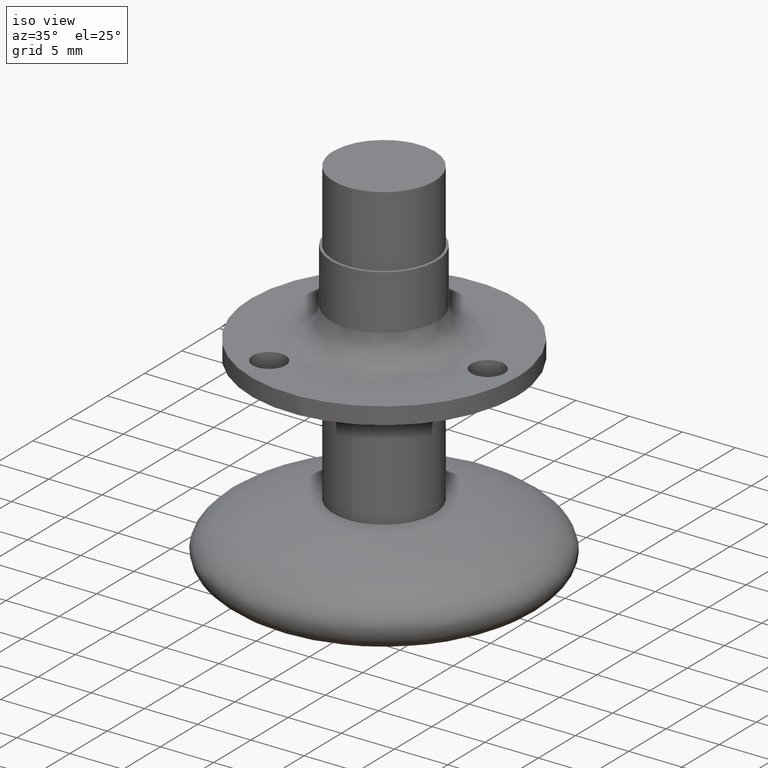
[diagram: clean part render]
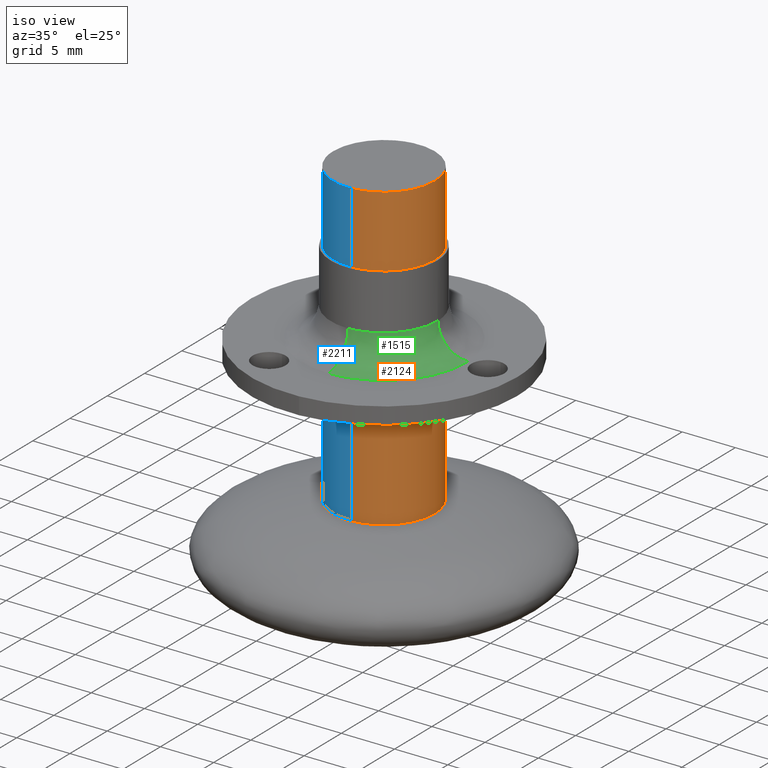
[diagram: same view with three faces highlighted in distinct colors, each labeled with its STEP entity id]
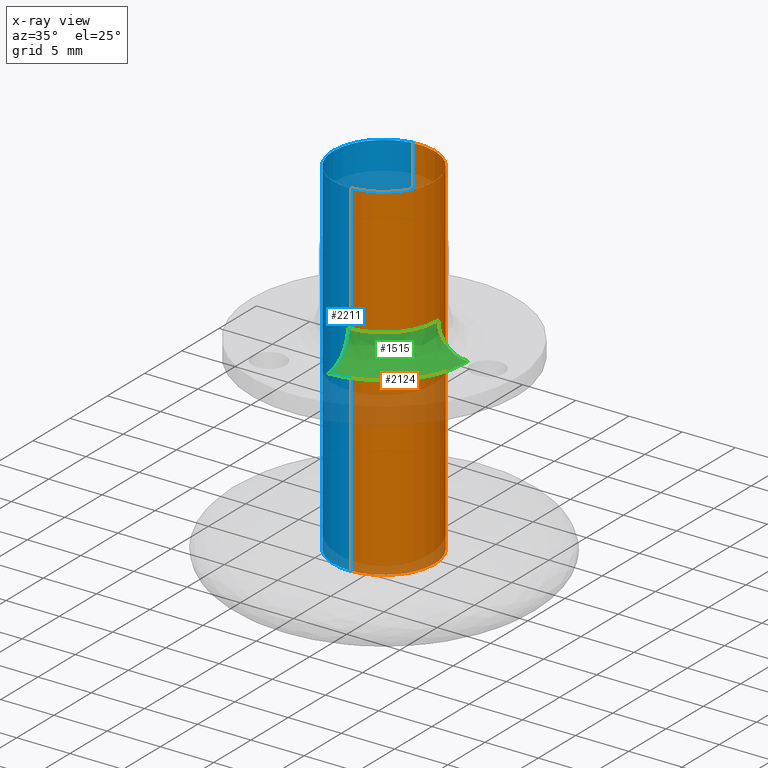
[diagram: x-ray of the same camera — body ghosted, the three highlighted faces saturated]
A machine part, iso view with three faces highlighted in distinct colors.
The next image is the same camera in x-ray (body ghosted, the three faces saturated) — at least one of them is partly hidden behind the body in this view.
Their STEP definitions:

[orange] entity #2124 — the highlighted face is a freeform B-spline surface patch.
#2022=CARTESIAN_POINT('',(-0.562138042552812,4.729207869306960,0.812500000000001));
#2023=CARTESIAN_POINT('',(-0.426790145138369,4.745296018573984,0.812500000000001));
#2024=CARTESIAN_POINT('',(-0.290743669534756,4.753616977484140,0.812500000000001));
#2025=CARTESIAN_POINT('',(4.462873307949383,5.044360647018896,0.812500000000001));
#2026=CARTESIAN_POINT('',(4.753616977484140,0.290743669534756,0.812500000000001));
#2027=CARTESIAN_POINT('',(5.044360647018896,-4.462873307949383,0.812500000000001));
#2028=CARTESIAN_POINT('',(0.290743669534756,-4.753616977484140,0.812500000000001));
#2029=CARTESIAN_POINT('',(-0.562138042552812,4.729207869306960,-33.332812500000017));
#2030=CARTESIAN_POINT('',(-0.426790145138369,4.745296018573984,-33.332812500000003));
#2031=CARTESIAN_POINT('',(-0.290743669534756,4.753616977484140,-33.332812500000003));
#2032=CARTESIAN_POINT('',(4.462873307949383,5.044360647018896,-33.332812500000003));
#2033=CARTESIAN_POINT('',(4.753616977484140,0.290743669534756,-33.332812500000003));
#2034=CARTESIAN_POINT('',(5.044360647018896,-4.462873307949383,-33.332812500000003));
#2035=CARTESIAN_POINT('',(0.290743669534756,-4.753616977484140,-33.332812500000003));
#2043=(BOUNDED_SURFACE()B_SPLINE_SURFACE(2,1,((#2022,#2029),(#2023,#2030),(#2024,#2031),(#2025,#2032),(#2026,#2033),(#2027,#2034),(#2028,#2035)),.UNSPECIFIED.,.F.,.F.,.U.)B_SPLINE_SURFACE_WITH_KNOTS((3,2,2,3),(2,2),(0.0,0.315630734528299,8.206399097735758,16.097167460943218),(0.0,34.145312500000010),.UNSPECIFIED.)GEOMETRIC_REPRESENTATION_ITEM()RATIONAL_B_SPLINE_SURFACE(((0.977505800795127,0.977505800795127),(0.988284271247462,0.988284271247462),(1.0,1.0),(0.707106781186548,0.707106781186548),(1.0,1.0),(0.707106781186548,0.707106781186548),(1.0,1.0)))REPRESENTATION_ITEM('')SURFACE());
#2044=CARTESIAN_POINT('',(-0.562129854687720,4.729208842544466,-32.500000000000007));
#2045=VERTEX_POINT('',#2044);
#2046=CARTESIAN_POINT('',(4.762500000000000,0.0,-32.500000000000000));
#2047=VERTEX_POINT('',#2046);
#2048=CARTESIAN_POINT('',(-0.562129854687720,4.729208842544466,-32.500000000000014));
#2049=CARTESIAN_POINT('',(-0.282050732630207,4.762500000000000,-32.499999999999993));
#2050=CARTESIAN_POINT('',(0.0,4.762500000000000,-32.500000000000000));
#2051=CARTESIAN_POINT('',(4.762500000000000,4.762500000000000,-32.500000000000007));
#2052=CARTESIAN_POINT('',(4.762500000000000,0.0,-32.500000000000000));
#2060=(BOUNDED_CURVE()B_SPLINE_CURVE(2,(#2048,#2049,#2050,#2051,#2052),.UNSPECIFIED.,.F.,.U.)B_SPLINE_CURVE_WITH_KNOTS((3,2,3),(0.229562766117700,0.250000000000000,0.500000000000000),.UNSPECIFIED.)CURVE()GEOMETRIC_REPRESENTATION_ITEM()RATIONAL_B_SPLINE_CURVE((0.956027327700691,0.976056291138279,1.0,0.707106781186548,1.0))REPRESENTATION_ITEM(''));
#2061=EDGE_CURVE('',#2045,#2047,#2060,.T.);
#2062=ORIENTED_EDGE('',*,*,#2061,.F.);
#2063=CARTESIAN_POINT('',(-0.562129955801661,4.729208830525895,-7.950399E-016));
#2064=VERTEX_POINT('',#2063);
#2065=CARTESIAN_POINT('',(-0.562129955801661,4.729208830525895,-7.950399E-016));
#2066=CARTESIAN_POINT('',(-0.562129854687720,4.729208842544466,-32.500000000000007));
#2067=QUASI_UNIFORM_CURVE('',1,(#2065,#2066),.UNSPECIFIED.,.F.,.U.);
#2068=EDGE_CURVE('',#2064,#2045,#2067,.T.);
#2069=ORIENTED_EDGE('',*,*,#2068,.F.);
#2070=CARTESIAN_POINT('',(4.762500000000000,0.0,0.0));
#2071=VERTEX_POINT('',#2070);
#2072=CARTESIAN_POINT('',(-0.562129955801661,4.729208830525895,-7.950399E-016));
#2073=CARTESIAN_POINT('',(-0.282050783721633,4.762500000000000,0.0));
#2074=CARTESIAN_POINT('',(0.0,4.762500000000000,0.0));
#2075=CARTESIAN_POINT('',(4.762500000000000,4.762500000000000,0.0));
#2076=CARTESIAN_POINT('',(4.762500000000000,0.0,0.0));
#2084=(BOUNDED_CURVE()B_SPLINE_CURVE(2,(#2072,#2073,#2074,#2075,#2076),.UNSPECIFIED.,.F.,.U.)B_SPLINE_CURVE_WITH_KNOTS((3,2,3),(0.229562762504285,0.250000000000000,0.500000000000000),.UNSPECIFIED.)CURVE()GEOMETRIC_REPRESENTATION_ITEM()RATIONAL_B_SPLINE_CURVE((0.956027320618231,0.976056286904901,1.0,0.707106781186548,1.0))REPRESENTATION_ITEM(''));
#2085=EDGE_CURVE('',#2064,#2071,#2084,.T.);
#2086=ORIENTED_EDGE('',*,*,#2085,.T.);
#2087=CARTESIAN_POINT('',(0.290738367728659,-4.753617301750558,-7.771561E-016));
#2088=VERTEX_POINT('',#2087);
#2089=CARTESIAN_POINT('',(4.762500000000000,0.0,0.0));
#2090=CARTESIAN_POINT('',(4.762500000000000,-4.480117649739167,0.0));
#2091=CARTESIAN_POINT('',(0.290738367728658,-4.753617301750558,-7.771561E-016));
#2099=(BOUNDED_CURVE()B_SPLINE_CURVE(2,(#2089,#2090,#2091),.UNSPECIFIED.,.F.,.U.)B_SPLINE_CURVE_WITH_KNOTS((3,3),(0.500000000000000,0.739333154686954),.UNSPECIFIED.)CURVE()GEOMETRIC_REPRESENTATION_ITEM()RATIONAL_B_SPLINE_CURVE((1.0,0.719603767819840,0.976072454119788))REPRESENTATION_ITEM(''));
#2100=EDGE_CURVE('',#2071,#2088,#2099,.T.);
#2101=ORIENTED_EDGE('',*,*,#2100,.T.);
#2102=CARTESIAN_POINT('',(0.290738301588959,-4.753617305795686,-32.499999999999993));
#2103=VERTEX_POINT('',#2102);
#2104=CARTESIAN_POINT('',(0.290738367728659,-4.753617301750558,-7.771561E-016));
#2105=CARTESIAN_POINT('',(0.290738301588959,-4.753617305795686,-32.499999999999993));
#2106=QUASI_UNIFORM_CURVE('',1,(#2104,#2105),.UNSPECIFIED.,.F.,.U.);
#2107=EDGE_CURVE('',#2088,#2103,#2106,.T.);
#2108=ORIENTED_EDGE('',*,*,#2107,.T.);
#2109=CARTESIAN_POINT('',(4.762500000000000,0.0,-32.500000000000000));
#2110=CARTESIAN_POINT('',(4.762500000000000,-4.480117712189990,-32.499999999999993));
#2111=CARTESIAN_POINT('',(0.290738301588959,-4.753617305795686,-32.500000000000000));
#2119=(BOUNDED_CURVE()B_SPLINE_CURVE(2,(#2109,#2110,#2111),.UNSPECIFIED.,.F.,.U.)B_SPLINE_CURVE_WITH_KNOTS((3,3),(0.500000000000000,0.739333157087694),.UNSPECIFIED.)CURVE()GEOMETRIC_REPRESENTATION_ITEM()RATIONAL_B_SPLINE_CURVE((1.0,0.719603765007199,0.976072459265038))REPRESENTATION_ITEM(''));
#2120=EDGE_CURVE('',#2047,#2103,#2119,.T.);
#2121=ORIENTED_EDGE('',*,*,#2120,.F.);
#2122=EDGE_LOOP('',(#2062,#2069,#2086,#2101,#2108,#2121));
#2123=FACE_OUTER_BOUND('',#2122,.T.);
#2124=ADVANCED_FACE('',(#2123),#2043,.T.);

[blue] entity #2211 — the highlighted face is a freeform B-spline surface patch.
#2044=CARTESIAN_POINT('',(-0.562129854687720,4.729208842544466,-32.500000000000007));
#2045=VERTEX_POINT('',#2044);
#2063=CARTESIAN_POINT('',(-0.562129955801661,4.729208830525895,-7.950399E-016));
#2064=VERTEX_POINT('',#2063);
#2065=CARTESIAN_POINT('',(-0.562129955801661,4.729208830525895,-7.950399E-016));
#2066=CARTESIAN_POINT('',(-0.562129854687720,4.729208842544466,-32.500000000000007));
#2067=QUASI_UNIFORM_CURVE('',1,(#2065,#2066),.UNSPECIFIED.,.F.,.U.);
#2068=EDGE_CURVE('',#2064,#2045,#2067,.T.);
#2087=CARTESIAN_POINT('',(0.290738367728659,-4.753617301750558,-7.771561E-016));
#2088=VERTEX_POINT('',#2087);
#2102=CARTESIAN_POINT('',(0.290738301588959,-4.753617305795686,-32.499999999999993));
#2103=VERTEX_POINT('',#2102);
#2104=CARTESIAN_POINT('',(0.290738367728659,-4.753617301750558,-7.771561E-016));
#2105=CARTESIAN_POINT('',(0.290738301588959,-4.753617305795686,-32.499999999999993));
#2106=QUASI_UNIFORM_CURVE('',1,(#2104,#2105),.UNSPECIFIED.,.F.,.U.);
#2107=EDGE_CURVE('',#2088,#2103,#2106,.T.);
#2125=CARTESIAN_POINT('',(0.356244161106296,-4.749610795798480,0.812500000000001));
#2126=CARTESIAN_POINT('',(0.323587643545533,-4.751608153977484,0.812500000000000));
#2127=CARTESIAN_POINT('',(-4.462873307949383,-5.044360647018896,0.812500000000001));
#2128=CARTESIAN_POINT('',(-4.753616977484140,-0.290743669534756,0.812500000000001));
#2129=CARTESIAN_POINT('',(-5.028181761938662,4.198350875123123,0.812500000000001));
#2130=CARTESIAN_POINT('',(-0.528698414077936,4.733182676042895,0.812500000000001));
#2131=CARTESIAN_POINT('',(-0.495438510386856,4.737136119763934,0.812500000000001));
#2132=CARTESIAN_POINT('',(0.356244161106296,-4.749610795798480,-33.332812500000010));
#2133=CARTESIAN_POINT('',(0.323587643545533,-4.751608153977484,-33.332812499999989));
#2134=CARTESIAN_POINT('',(-4.462873307949383,-5.044360647018896,-33.332812500000003));
#2135=CARTESIAN_POINT('',(-4.753616977484140,-0.290743669534756,-33.332812500000003));
#2136=CARTESIAN_POINT('',(-5.028181761938662,4.198350875123123,-33.332812500000003));
#2137=CARTESIAN_POINT('',(-0.528698414077936,4.733182676042895,-33.332812500000010));
#2138=CARTESIAN_POINT('',(-0.495438510386856,4.737136119763934,-33.332812500000003));
#2146=(BOUNDED_SURFACE()B_SPLINE_SURFACE(2,1,((#2125,#2132),(#2126,#2133),(#2127,#2134),(#2128,#2135),(#2129,#2136),(#2130,#2137),(#2131,#2138)),.UNSPECIFIED.,.F.,.F.,.U.)B_SPLINE_SURFACE_WITH_KNOTS((3,1,2,1,3),(2,2),(0.0,0.077323321272630,7.968091684480089,15.543229313159250,15.620568300399160),(0.0,34.145312500000010),.UNSPECIFIED.)GEOMETRIC_REPRESENTATION_ITEM()RATIONAL_B_SPLINE_SURFACE(((1.005740246174881,1.005740246174881),(1.002870123087441,1.002870123087441),(0.707106781186548,0.707106781186548),(1.0,1.0),(0.718822509939086,0.718822509939086),(0.980146849012515,0.980146849012515),(0.982787897229903,0.982787897229903)))REPRESENTATION_ITEM('')SURFACE());
#2147=CARTESIAN_POINT('',(-4.762500000000000,0.0,-32.500000000000000));
#2148=VERTEX_POINT('',#2147);
#2149=CARTESIAN_POINT('',(-4.762500000000000,0.0,-32.500000000000000));
#2150=CARTESIAN_POINT('',(-4.762500000000000,4.229938554849865,-32.499999999999993));
#2151=CARTESIAN_POINT('',(-0.562129854687720,4.729208842544466,-32.500000000000014));
#2159=(BOUNDED_CURVE()B_SPLINE_CURVE(2,(#2149,#2150,#2151),.UNSPECIFIED.,.F.,.U.)B_SPLINE_CURVE_WITH_KNOTS((3,3),(0.0,0.229562766117700),.UNSPECIFIED.)CURVE()GEOMETRIC_REPRESENTATION_ITEM()RATIONAL_B_SPLINE_CURVE((1.0,0.731050490048269,0.956027327700691))REPRESENTATION_ITEM(''));
#2160=EDGE_CURVE('',#2148,#2045,#2159,.T.);
#2161=ORIENTED_EDGE('',*,*,#2160,.F.);
#2162=CARTESIAN_POINT('',(0.290738301588959,-4.753617305795686,-32.500000000000000));
#2163=CARTESIAN_POINT('',(0.145504843711265,-4.762500000000001,-32.500000000000000));
#2164=CARTESIAN_POINT('',(0.0,-4.762500000000000,-32.500000000000000));
#2165=CARTESIAN_POINT('',(-4.762500000000000,-4.762500000000000,-32.500000000000007));
#2166=CARTESIAN_POINT('',(-4.762500000000000,0.0,-32.500000000000000));
#2174=(BOUNDED_CURVE()B_SPLINE_CURVE(2,(#2162,#2163,#2164,#2165,#2166),.UNSPECIFIED.,.F.,.U.)B_SPLINE_CURVE_WITH_KNOTS((3,2,3),(0.739333157087694,0.750000000000000,1.0),.UNSPECIFIED.)CURVE()GEOMETRIC_REPRESENTATION_ITEM()RATIONAL_B_SPLINE_CURVE((0.976072459265038,0.987503016179349,1.0,0.707106781186548,1.0))REPRESENTATION_ITEM(''));
#2175=EDGE_CURVE('',#2103,#2148,#2174,.T.);
#2176=ORIENTED_EDGE('',*,*,#2175,.F.);
#2177=ORIENTED_EDGE('',*,*,#2107,.F.);
#2178=CARTESIAN_POINT('',(-4.762500000000000,0.0,0.0));
#2179=VERTEX_POINT('',#2178);
#2180=CARTESIAN_POINT('',(0.290738367728658,-4.753617301750558,-7.771561E-016));
#2181=CARTESIAN_POINT('',(0.145504876873833,-4.762500000000001,0.0));
#2182=CARTESIAN_POINT('',(0.0,-4.762500000000000,0.0));
#2183=CARTESIAN_POINT('',(-4.762500000000000,-4.762500000000000,0.0));
#2184=CARTESIAN_POINT('',(-4.762500000000000,0.0,0.0));
#2192=(BOUNDED_CURVE()B_SPLINE_CURVE(2,(#2180,#2181,#2182,#2183,#2184),.UNSPECIFIED.,.F.,.U.)B_SPLINE_CURVE_WITH_KNOTS((3,2,3),(0.739333154686954,0.750000000000000,1.0),.UNSPECIFIED.)CURVE()GEOMETRIC_REPRESENTATION_ITEM()RATIONAL_B_SPLINE_CURVE((0.976072454119788,0.987503013366708,1.0,0.707106781186548,1.0))REPRESENTATION_ITEM(''));
#2193=EDGE_CURVE('',#2088,#2179,#2192,.T.);
#2194=ORIENTED_EDGE('',*,*,#2193,.T.);
#2195=CARTESIAN_POINT('',(-4.762500000000000,0.0,0.0));
#2196=CARTESIAN_POINT('',(-4.762500000000000,4.229938463774061,0.0));
#2197=CARTESIAN_POINT('',(-0.562129955801661,4.729208830525895,-7.950399E-016));
#2205=(BOUNDED_CURVE()B_SPLINE_CURVE(2,(#2195,#2196,#2197),.UNSPECIFIED.,.F.,.U.)B_SPLINE_CURVE_WITH_KNOTS((3,3),(0.0,0.229562762504285),.UNSPECIFIED.)CURVE()GEOMETRIC_REPRESENTATION_ITEM()RATIONAL_B_SPLINE_CURVE((1.0,0.731050494281647,0.956027320618231))REPRESENTATION_ITEM(''));
#2206=EDGE_CURVE('',#2179,#2064,#2205,.T.);
#2207=ORIENTED_EDGE('',*,*,#2206,.T.);
#2208=ORIENTED_EDGE('',*,*,#2068,.T.);
#2209=EDGE_LOOP('',(#2161,#2176,#2177,#2194,#2207,#2208));
#2210=FACE_OUTER_BOUND('',#2209,.T.);
#2211=ADVANCED_FACE('',(#2210),#2146,.T.);

[green] entity #1515 — the highlighted face is a freeform B-spline surface patch.
#1102=CARTESIAN_POINT('',(0.125650477244029,-4.998420946415813,-11.834759000013090));
#1103=VERTEX_POINT('',#1102);
#1119=CARTESIAN_POINT('',(5.0,0.0,-11.834758999999901));
#1120=VERTEX_POINT('',#1119);
#1121=CARTESIAN_POINT('',(5.0,0.0,-11.834758999999901));
#1122=CARTESIAN_POINT('',(4.999999999999999,-4.875889380849880,-11.834758999999902));
#1123=CARTESIAN_POINT('',(0.125650477244029,-4.998420946415813,-11.834759000013092));
#1131=(BOUNDED_CURVE()B_SPLINE_CURVE(2,(#1121,#1122,#1123),.UNSPECIFIED.,.F.,.U.)B_SPLINE_CURVE_WITH_KNOTS((3,3),(0.500000000000000,0.745579891767893),.UNSPECIFIED.)CURVE()GEOMETRIC_REPRESENTATION_ITEM()RATIONAL_B_SPLINE_CURVE((1.0,0.712285260096970,0.989826157677249))REPRESENTATION_ITEM(''));
#1132=EDGE_CURVE('',#1120,#1103,#1131,.T.);
#1134=CARTESIAN_POINT('',(4.998420946415823,0.125650477243584,-11.834759000013090));
#1135=VERTEX_POINT('',#1134);
#1136=CARTESIAN_POINT('',(4.998420946415823,0.125650477243584,-11.834759000013092));
#1137=CARTESIAN_POINT('',(5.000000000000001,0.062835160643806,-11.834758999999897));
#1138=CARTESIAN_POINT('',(5.0,0.0,-11.834758999999901));
#1146=(BOUNDED_CURVE()B_SPLINE_CURVE(2,(#1136,#1137,#1138),.UNSPECIFIED.,.F.,.U.)B_SPLINE_CURVE_WITH_KNOTS((3,3),(0.495579891767925,0.500000000000000),.UNSPECIFIED.)CURVE()GEOMETRIC_REPRESENTATION_ITEM()RATIONAL_B_SPLINE_CURVE((0.989826157677320,0.994821521089614,1.0))REPRESENTATION_ITEM(''));
#1147=EDGE_CURVE('',#1135,#1120,#1146,.T.);
#1399=CARTESIAN_POINT('',(7.747552466860125,0.194758239730844,-14.584758999999901));
#1400=VERTEX_POINT('',#1399);
#1401=CARTESIAN_POINT('',(7.747552466860125,0.194758239730844,-14.584758999999897));
#1402=CARTESIAN_POINT('',(4.998420946442879,0.125650477217352,-14.584758999831314));
#1403=CARTESIAN_POINT('',(4.998420946415823,0.125650477243584,-11.834759000013095));
#1411=(BOUNDED_CURVE()B_SPLINE_CURVE(2,(#1401,#1402,#1403),.UNSPECIFIED.,.F.,.U.)B_SPLINE_CURVE_WITH_KNOTS((3,3),(-1.723441281921653,-0.263586878937762),.UNSPECIFIED.)CURVE()GEOMETRIC_REPRESENTATION_ITEM()RATIONAL_B_SPLINE_CURVE((0.883897567116419,0.626638727250612,0.888510409058987))REPRESENTATION_ITEM(''));
#1412=EDGE_CURVE('',#1400,#1135,#1411,.T.);
#1431=CARTESIAN_POINT('',(0.194758239733055,-7.747552466854357,-14.584758999999901));
#1432=VERTEX_POINT('',#1431);
#1448=CARTESIAN_POINT('',(0.194758239733055,-7.747552466854357,-14.584758999999897));
#1449=CARTESIAN_POINT('',(0.125650477217352,-4.998420946442869,-14.584758999819895));
#1450=CARTESIAN_POINT('',(0.125650477244029,-4.998420946415813,-11.834759000013090));
#1458=(BOUNDED_CURVE()B_SPLINE_CURVE(2,(#1448,#1449,#1450),.UNSPECIFIED.,.F.,.U.)B_SPLINE_CURVE_WITH_KNOTS((3,3),(-1.723441281917376,-0.263586878937759),.UNSPECIFIED.)CURVE()GEOMETRIC_REPRESENTATION_ITEM()RATIONAL_B_SPLINE_CURVE((0.883897567114912,0.626638727251378,0.888510409058988))REPRESENTATION_ITEM(''));
#1459=EDGE_CURVE('',#1432,#1103,#1458,.T.);
#1464=CARTESIAN_POINT('',(7.939233755471800,0.199576730492269,-14.578066322516877));
#1465=CARTESIAN_POINT('',(8.138810485964068,-7.739657024979533,-14.578066322516877));
#1466=CARTESIAN_POINT('',(0.199576730492269,-7.939233755471800,-14.578066322516877));
#1467=CARTESIAN_POINT('',(4.785814661791488,0.120305973140546,-14.798542313519020));
#1468=CARTESIAN_POINT('',(4.906120634932035,-4.665508688650942,-14.798542313519022));
#1469=CARTESIAN_POINT('',(0.120305973140546,-4.785814661791488,-14.798542313519020));
#1470=CARTESIAN_POINT('',(5.005039909248315,0.125816864931412,-11.644044664618924));
#1471=CARTESIAN_POINT('',(5.130856774179725,-4.879223044316902,-11.644044664618924));
#1472=CARTESIAN_POINT('',(0.125816864931412,-5.005039909248315,-11.644044664618924));
#1480=(BOUNDED_SURFACE()B_SPLINE_SURFACE(2,2,((#1464,#1467,#1470),(#1465,#1468,#1471),(#1466,#1469,#1472)),.UNSPECIFIED.,.F.,.F.,.U.)B_SPLINE_SURFACE_WITH_KNOTS((3,3),(3,3),(0.0,13.158308720374340),(0.0,5.011519110748875),.UNSPECIFIED.)GEOMETRIC_REPRESENTATION_ITEM()RATIONAL_B_SPLINE_SURFACE(((0.910892991679151,0.599412889184801,0.915966660685442),(0.644098611351629,0.423848918673193,0.647686237111473),(0.910892991679151,0.599412889184801,0.915966660685442)))REPRESENTATION_ITEM('')SURFACE());
#1481=ORIENTED_EDGE('',*,*,#1132,.T.);
#1482=ORIENTED_EDGE('',*,*,#1459,.F.);
#1483=CARTESIAN_POINT('',(7.750000000000000,0.0,-14.584758999999901));
#1484=VERTEX_POINT('',#1483);
#1485=CARTESIAN_POINT('',(7.750000000000000,0.0,-14.584758999999901));
#1486=CARTESIAN_POINT('',(7.750000000000001,-7.557628540303501,-14.584758999999904));
#1487=CARTESIAN_POINT('',(0.194758239733055,-7.747552466854357,-14.584758999999895));
#1495=(BOUNDED_CURVE()B_SPLINE_CURVE(2,(#1485,#1486,#1487),.UNSPECIFIED.,.F.,.U.)B_SPLINE_CURVE_WITH_KNOTS((3,3),(0.500000000000000,0.745579891767573),.UNSPECIFIED.)CURVE()GEOMETRIC_REPRESENTATION_ITEM()RATIONAL_B_SPLINE_CURVE((1.0,0.712285260097345,0.989826157676526))REPRESENTATION_ITEM(''));
#1496=EDGE_CURVE('',#1484,#1432,#1495,.T.);
#1497=ORIENTED_EDGE('',*,*,#1496,.F.);
#1498=CARTESIAN_POINT('',(7.747552466860125,0.194758239730844,-14.584758999999902));
#1499=CARTESIAN_POINT('',(7.749999999999999,0.097394499003311,-14.584758999999902));
#1500=CARTESIAN_POINT('',(7.750000000000000,0.0,-14.584758999999901));
#1508=(BOUNDED_CURVE()B_SPLINE_CURVE(2,(#1498,#1499,#1500),.UNSPECIFIED.,.F.,.U.)B_SPLINE_CURVE_WITH_KNOTS((3,3),(0.495579891767680,0.500000000000000),.UNSPECIFIED.)CURVE()GEOMETRIC_REPRESENTATION_ITEM()RATIONAL_B_SPLINE_CURVE((0.989826157676768,0.994821521089328,1.0))REPRESENTATION_ITEM(''));
#1509=EDGE_CURVE('',#1400,#1484,#1508,.T.);
#1510=ORIENTED_EDGE('',*,*,#1509,.F.);
#1511=ORIENTED_EDGE('',*,*,#1412,.T.);
#1512=ORIENTED_EDGE('',*,*,#1147,.T.);
#1513=EDGE_LOOP('',(#1481,#1482,#1497,#1510,#1511,#1512));
#1514=FACE_OUTER_BOUND('',#1513,.T.);
#1515=ADVANCED_FACE('',(#1514),#1480,.F.);